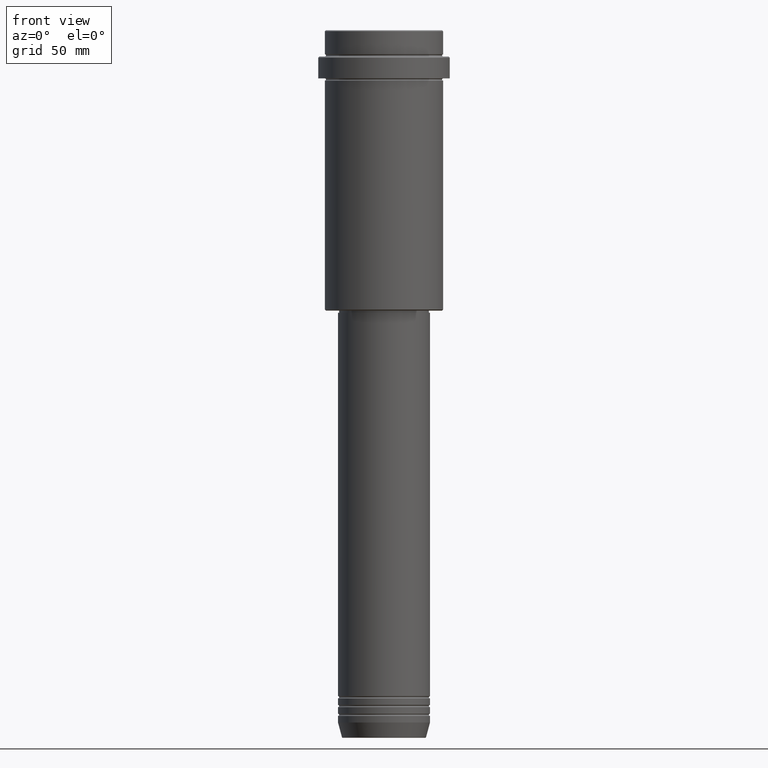
[diagram: clean part render]
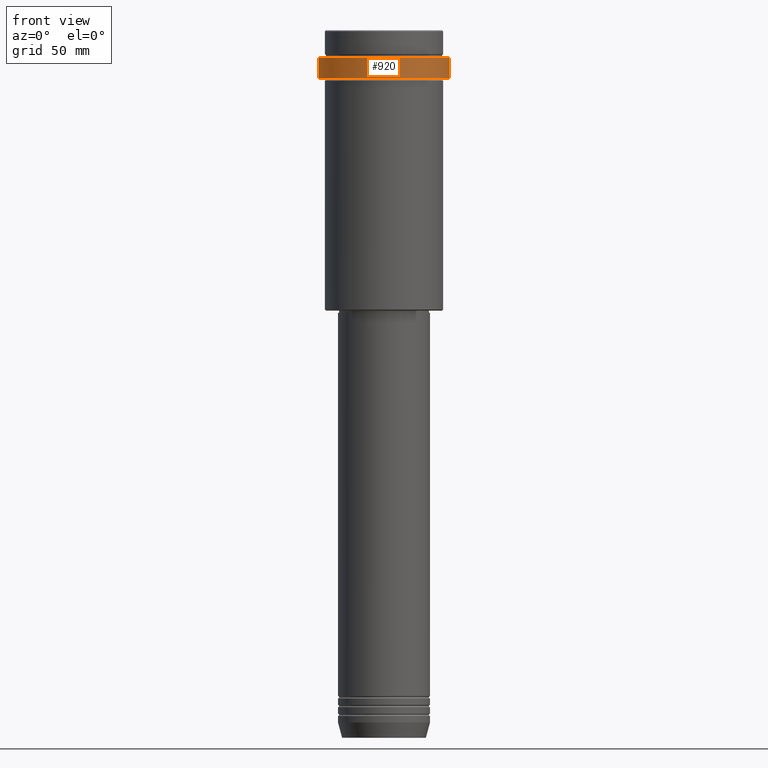
[diagram: same view with one face highlighted and labeled with its STEP entity id]
A machine part, front view. The second image highlights one B-rep face of the part: STEP entity #920.
In plain terms, the highlighted cylindrical surface (partial cylindrical patch) has radius 30 mm, axis along (-0, -0, 1).
Its self-contained STEP definition (entity closure, byte-faithful):
#12 = CIRCLE ( 'NONE', #738, 30.00000000000000000 ) ;
#44 = CARTESIAN_POINT ( 'NONE',  ( -30.00000000000000000, 3.673940397442059178E-15, 0.000000000000000000 ) ) ;
#47 = CARTESIAN_POINT ( 'NONE',  ( 30.00000000000000000, 0.000000000000000000, 0.000000000000000000 ) ) ;
#72 = DIRECTION ( 'NONE',  ( -0.000000000000000000, -0.000000000000000000, 1.000000000000000000 ) ) ;
#145 = CARTESIAN_POINT ( 'NONE',  ( -29.99999999999999645, 3.673940397442058389E-15, -22.00000000000000355 ) ) ;
#181 = CARTESIAN_POINT ( 'NONE',  ( 0.000000000000000000, 0.000000000000000000, -12.49999999999998224 ) ) ;
#189 = CARTESIAN_POINT ( 'NONE',  ( 30.00000000000000000, 0.000000000000000000, -12.49999999999998224 ) ) ;
#207 = EDGE_CURVE ( 'NONE', #829, #471, #588, .T. ) ;
#362 = VERTEX_POINT ( 'NONE', #189 ) ;
#463 = VECTOR ( 'NONE', #1330, 1000.000000000000000 ) ;
#471 = VERTEX_POINT ( 'NONE', #615 ) ;
#477 = DIRECTION ( 'NONE',  ( -0.000000000000000000, -0.000000000000000000, 1.000000000000000000 ) ) ;
#522 = EDGE_CURVE ( 'NONE', #1031, #362, #590, .T. ) ;
#543 = EDGE_CURVE ( 'NONE', #829, #1031, #1170, .T. ) ;
#565 = DIRECTION ( 'NONE',  ( 1.000000000000000000, 0.000000000000000000, 0.000000000000000000 ) ) ;
#582 = AXIS2_PLACEMENT_3D ( 'NONE', #744, #72, #1066 ) ;
#588 = LINE ( 'NONE', #44, #463 ) ;
#590 = LINE ( 'NONE', #47, #674 ) ;
#595 = DIRECTION ( 'NONE',  ( -0.000000000000000000, -0.000000000000000000, 1.000000000000000000 ) ) ;
#607 = AXIS2_PLACEMENT_3D ( 'NONE', #1015, #595, #565 ) ;
#614 = DIRECTION ( 'NONE',  ( 1.000000000000000000, 0.000000000000000000, 0.000000000000000000 ) ) ;
#615 = CARTESIAN_POINT ( 'NONE',  ( -30.00000000000000000, 3.673940397442059178E-15, -12.49999999999998224 ) ) ;
#674 = VECTOR ( 'NONE', #477, 1000.000000000000000 ) ;
#678 = ORIENTED_EDGE ( 'NONE', *, *, #522, .T. ) ;
#686 = ORIENTED_EDGE ( 'NONE', *, *, #207, .F. ) ;
#724 = FACE_OUTER_BOUND ( 'NONE', #823, .T. ) ;
#738 = AXIS2_PLACEMENT_3D ( 'NONE', #181, #931, #614 ) ;
#744 = CARTESIAN_POINT ( 'NONE',  ( 0.000000000000000000, 0.000000000000000000, 0.000000000000000000 ) ) ;
#823 = EDGE_LOOP ( 'NONE', ( #686, #1326, #678, #1003 ) ) ;
#829 = VERTEX_POINT ( 'NONE', #145 ) ;
#843 = CYLINDRICAL_SURFACE ( 'NONE', #582, 30.00000000000000000 ) ;
#920 = ADVANCED_FACE ( 'NONE', ( #724 ), #843, .T. ) ;
#931 = DIRECTION ( 'NONE',  ( 0.000000000000000000, 0.000000000000000000, -1.000000000000000000 ) ) ;
#993 = CARTESIAN_POINT ( 'NONE',  ( 29.99999999999999645, 0.000000000000000000, -22.00000000000000355 ) ) ;
#1003 = ORIENTED_EDGE ( 'NONE', *, *, #1378, .T. ) ;
#1015 = CARTESIAN_POINT ( 'NONE',  ( 0.000000000000000000, 0.000000000000000000, -22.00000000000000355 ) ) ;
#1031 = VERTEX_POINT ( 'NONE', #993 ) ;
#1066 = DIRECTION ( 'NONE',  ( 1.000000000000000000, 0.000000000000000000, 0.000000000000000000 ) ) ;
#1170 = CIRCLE ( 'NONE', #607, 29.99999999999999645 ) ;
#1326 = ORIENTED_EDGE ( 'NONE', *, *, #543, .T. ) ;
#1330 = DIRECTION ( 'NONE',  ( -0.000000000000000000, -0.000000000000000000, 1.000000000000000000 ) ) ;
#1378 = EDGE_CURVE ( 'NONE', #362, #471, #12, .T. ) ;